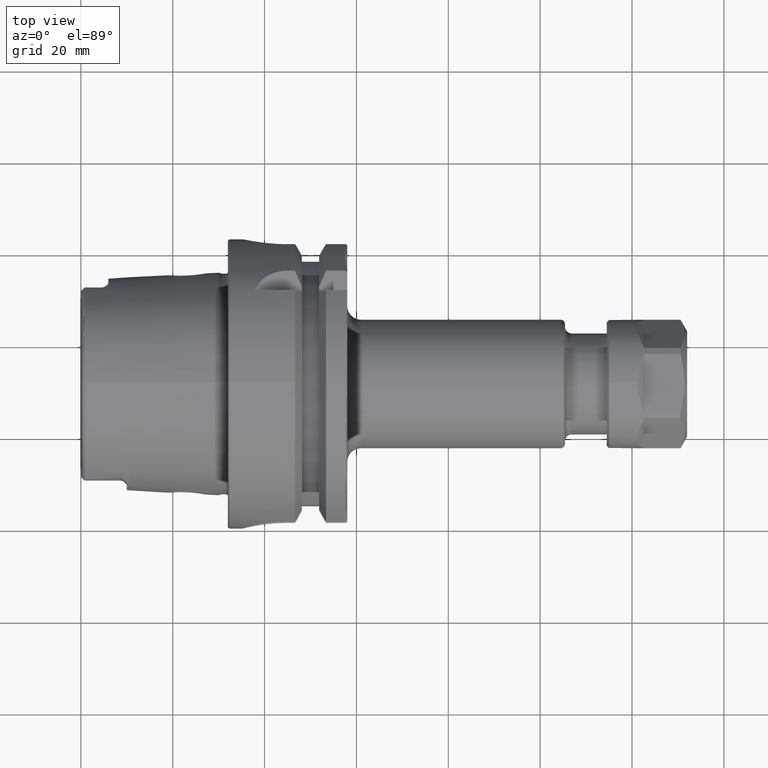
[diagram: clean part render]
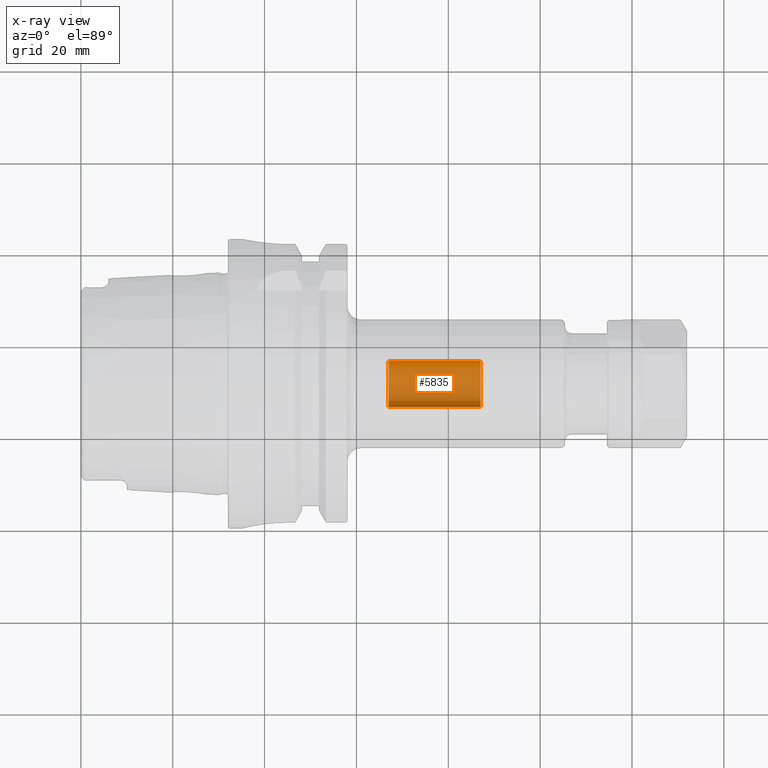
[diagram: x-ray — body ghosted, one internal face saturated and labeled with its STEP entity id]
A machine part, top view, then the same camera in x-ray: the body is ghosted and one INTERNAL B-rep face — a face not visible from any outside direction — is saturated and labeled: STEP entity #5835.
In plain terms, the highlighted cylindrical surface (edge-blend (fillet) strip) has radius 5 mm, axis along (1, 0, 0).
Its self-contained STEP definition (entity closure, byte-faithful):
#5770=CARTESIAN_POINT('',(5.5E1,0.E0,0.E0));
#5771=DIRECTION('',(-1.E0,0.E0,0.E0));
#5772=DIRECTION('',(0.E0,1.E0,0.E0));
#5773=AXIS2_PLACEMENT_3D('',#5770,#5771,#5772);
#5780=DIRECTION('',(-1.E0,0.E0,0.E0));
#5781=VECTOR('',#5780,2.E1);
#5782=CARTESIAN_POINT('',(5.5E1,5.E0,0.E0));
#5783=LINE('',#5782,#5781);
#5784=DIRECTION('',(-1.E0,0.E0,0.E0));
#5785=VECTOR('',#5784,2.E1);
#5786=CARTESIAN_POINT('',(5.5E1,-5.E0,0.E0));
#5787=LINE('',#5786,#5785);
#5793=CARTESIAN_POINT('',(3.5E1,0.E0,0.E0));
#5794=DIRECTION('',(1.E0,0.E0,0.E0));
#5795=DIRECTION('',(0.E0,-1.E0,0.E0));
#5796=AXIS2_PLACEMENT_3D('',#5793,#5794,#5795);
#5808=CARTESIAN_POINT('',(3.5E1,-5.E0,0.E0));
#5809=CARTESIAN_POINT('',(3.5E1,5.E0,0.E0));
#5810=VERTEX_POINT('',#5808);
#5811=VERTEX_POINT('',#5809);
#5812=CARTESIAN_POINT('',(5.5E1,-5.E0,0.E0));
#5813=CARTESIAN_POINT('',(5.5E1,5.E0,0.E0));
#5814=VERTEX_POINT('',#5812);
#5815=VERTEX_POINT('',#5813);
#5820=CARTESIAN_POINT('',(-5.0817E1,0.E0,0.E0));
#5821=DIRECTION('',(1.E0,0.E0,0.E0));
#5822=DIRECTION('',(0.E0,-1.E0,0.E0));
#5823=AXIS2_PLACEMENT_3D('',#5820,#5821,#5822);
#5824=CYLINDRICAL_SURFACE('',#5823,5.E0);
#5826=ORIENTED_EDGE('',*,*,#5825,.T.);
#5828=ORIENTED_EDGE('',*,*,#5827,.T.);
#5830=ORIENTED_EDGE('',*,*,#5829,.T.);
#5832=ORIENTED_EDGE('',*,*,#5831,.F.);
#5833=EDGE_LOOP('',(#5826,#5828,#5830,#5832));
#5834=FACE_OUTER_BOUND('',#5833,.F.);
#5835=ADVANCED_FACE('',(#5834),#5824,.F.);
#5774=CIRCLE('',#5773,5.E0);
#5797=CIRCLE('',#5796,5.E0);
#5825=EDGE_CURVE('',#5815,#5814,#5774,.T.);
#5827=EDGE_CURVE('',#5814,#5810,#5787,.T.);
#5829=EDGE_CURVE('',#5810,#5811,#5797,.T.);
#5831=EDGE_CURVE('',#5815,#5811,#5783,.T.);